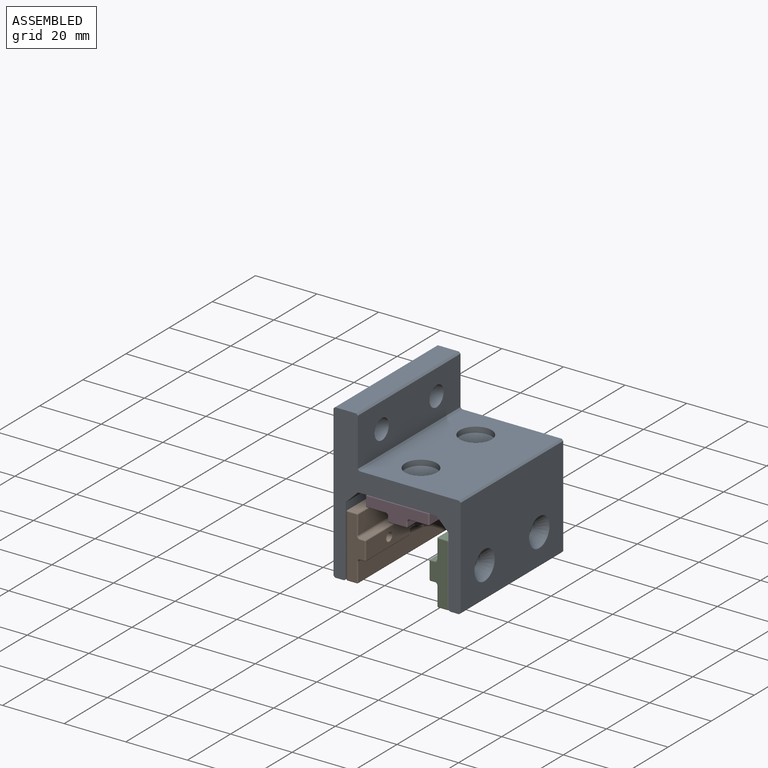
[diagram: assembled view]
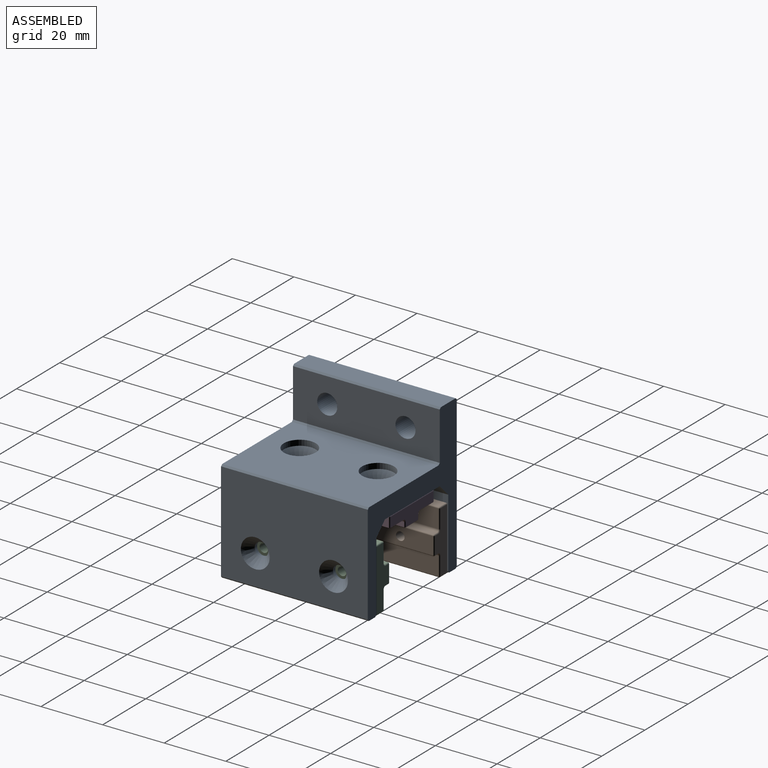
[diagram: assembled view, second angle]
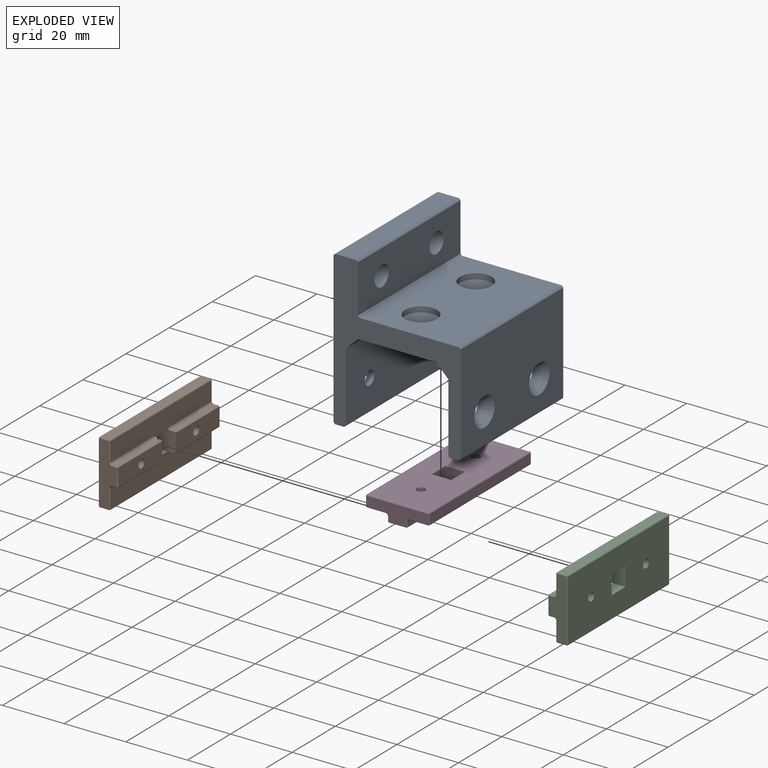
[diagram: exploded view]
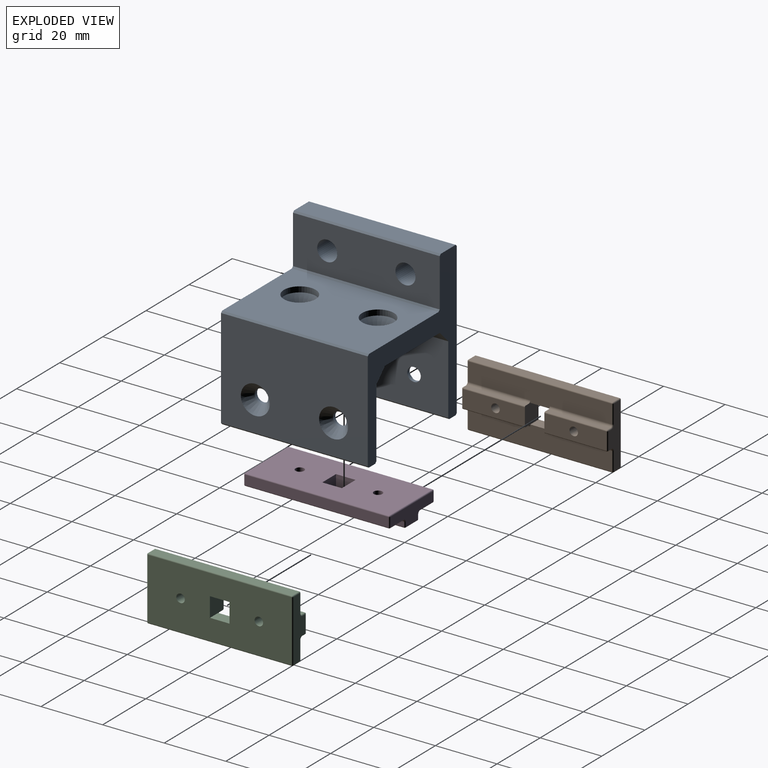
[diagram: exploded view, second angle]
ASSEMBLY  parts=4 mates=3
PART A: 38 faces, bbox 41.2x47.6x50 mm
  f0: plane 48.97x47.63mm, normal (-1,0,0), area 2126.6mm2, adj f3,f5,f12,f13,f15,f17,f29,f30
  f1: plane 47.63x2.95mm, normal (0,0,-1), area 140.3mm2, adj f3,f5,f34,f35
  f2: plane 47.63x2.95mm, normal (0,0,-1), area 140.3mm2, adj f3,f5,f28,f29
  f3: plane 49.99x41.25mm, normal (0,-1,0), area 622.3mm2, adj f0,f1,f2,f4,f6,f7,f8,f9
  f4: plane 47.63x6.88mm, normal (0,0,1), area 327.8mm2, adj f3,f5,f30,f31
  f5: plane 49.99x41.25mm, normal (0,1,0), area 622.3mm2, adj f0,f1,f2,f4,f6,f7,f8,f9
  f6: plane 47.63x32.31mm, normal (1,0,0), area 1400mm2, adj f3,f5,f19,f21,f33,f34
  f7: plane 47.63x22.5mm, normal (-1,0,0), area 1041.4mm2, adj f3,f5,f18,f20,f35,f36
  f8: plane 47.63x25.4mm, normal (0,0,-1), area 1179.3mm2, adj f3,f5,f22,f25,f36,f37
  f9: plane 47.63x22.5mm, normal (1,0,0), area 1041.4mm2, adj f3,f5,f14,f16,f28,f37
  f10: plane 47.63x32.33mm, normal (0,0,1), area 1372mm2, adj f3,f5,f24,f27,f32,f33
  f11: plane 47.63x15.65mm, normal (1,0,0), area 678.2mm2, adj f3,f5,f12,f13,f31,f32
  f12: cylinder r=3.26mm len=7.9mm, axis (-1,0,0), area 162mm2, adj f0,f11
  f13: cylinder r=3.26mm len=7.9mm, axis (-1,0,0), area 162mm2, adj f0,f11
  f14: cylinder r=2.2mm len=4.39mm, axis (-1,0,0), area 15mm2, adj f9,f15
  f15: cone r=4.7mm half-angle=41deg, axis (-1,0,0), area 82.6mm2, adj f0,f14
  f16: cylinder r=2.2mm len=4.39mm, axis (-1,0,0), area 15mm2, adj f9,f17
  f17: cone r=4.7mm half-angle=41deg, axis (-1,0,0), area 82.6mm2, adj f0,f16
  f18: cylinder r=2.2mm len=4.39mm, axis (1,0,0), area 15mm2, adj f7,f19
  f19: cone r=4.7mm half-angle=41deg, axis (1,0,0), area 82.6mm2, adj f6,f18
  f20: cylinder r=2.2mm len=4.39mm, axis (1,0,0), area 15mm2, adj f7,f21
  f21: cone r=4.7mm half-angle=41deg, axis (1,0,0), area 82.6mm2, adj f6,f20
  f22: cylinder r=2.2mm len=4.39mm, axis (0,0,1), area 15.9mm2, adj f8,f23
  f23: cone r=5.17mm half-angle=41deg, axis (0,0,1), area 104.8mm2, adj f22,f24
  f24: cylinder r=5.17mm len=10.34mm, axis (0,0,1), area 57.7mm2, adj f10,f23
  f25: cylinder r=2.2mm len=4.39mm, axis (0,0,1), area 15.9mm2, adj f8,f26
  f26: cone r=5.17mm half-angle=41deg, axis (0,0,1), area 104.8mm2, adj f25,f27
  f27: cylinder r=5.17mm len=10.34mm, axis (0,0,1), area 57.7mm2, adj f10,f26
  f28: plane 47.63x0.51mm, normal (0.71,0,-0.71), area 34.2mm2, adj f2,f3,f5,f9
  f29: plane 47.63x0.51mm, normal (-0.71,0,-0.71), area 34.2mm2, adj f0,f2,f3,f5
  f30: plane 47.63x0.51mm, normal (-0.71,0,0.71), area 34.2mm2, adj f0,f3,f4,f5
  f31: plane 47.63x0.51mm, normal (0.71,0,0.71), area 34.2mm2, adj f3,f4,f5,f11
  f32: plane 47.63x0.51mm, normal (0.71,0,0.71), area 34.2mm2, adj f3,f5,f10,f11
  f33: plane 47.63x0.51mm, normal (0.71,0,0.71), area 34.2mm2, adj f3,f5,f6,f10
  f34: plane 47.63x0.51mm, normal (0.71,0,-0.71), area 34.2mm2, adj f1,f3,f5,f6
  f35: plane 47.63x0.51mm, normal (-0.71,0,-0.71), area 34.2mm2, adj f1,f3,f5,f7
  f36: plane 47.63x3.96mm, normal (-0.71,0,-0.71), area 266.9mm2, adj f3,f5,f7,f8
  f37: plane 47.63x3.96mm, normal (0.71,0,-0.71), area 266.9mm2, adj f3,f5,f8,f9
PART B: 63 faces, bbox 20.6x47.4x6.4 mm
  f0: cylinder r=0.76mm len=20.13mm, axis (0,1,0), area 24.1mm2, adj f4,f22,f40,f60
  f1: cylinder r=0.76mm len=20.13mm, axis (0,1,0), area 24.1mm2, adj f9,f22,f57,f61
  f2: cylinder r=0.76mm len=20.13mm, axis (0,1,0), area 24.1mm2, adj f8,f14,f33,f60
  f3: cylinder r=0.76mm len=20.13mm, axis (0,1,0), area 24.1mm2, adj f13,f14,f45,f61
  f4: plane 20.13x1.4mm, normal (1,0,0), area 28.1mm2, adj f0,f5,f42,f60
  f5: cylinder r=0.38mm len=20.13mm, axis (0,1,0), area 12mm2, adj f4,f6,f41,f60
  f6: plane 20.13x5.59mm, normal (0,0,1), area 106.5mm2, adj f5,f7,f25,f39,f60
  f7: cylinder r=0.38mm len=20.13mm, axis (0,1,0), area 12mm2, adj f6,f8,f37,f60
  f8: plane 20.13x1.4mm, normal (-1,0,0), area 28.1mm2, adj f2,f7,f35,f60
  f9: plane 20.13x1.4mm, normal (1,0,0), area 28.1mm2, adj f1,f10,f55,f61
  f10: cylinder r=0.38mm len=20.13mm, axis (0,1,0), area 12mm2, adj f9,f11,f53,f61
  f11: plane 20.13x5.59mm, normal (0,0,1), area 106.5mm2, adj f10,f12,f26,f51,f61
  f12: cylinder r=0.38mm len=20.13mm, axis (0,1,0), area 12mm2, adj f11,f13,f49,f61
  f13: plane 20.13x1.4mm, normal (-1,0,0), area 28.1mm2, adj f3,f12,f47,f61
  f14: plane 46.61x6.76mm, normal (0,0,1), area 284.2mm2, adj f2,f3,f15,f31,f43,f60,f61,f62
  f15: cylinder r=0.38mm len=46.61mm, axis (0,1,0), area 27.9mm2, adj f14,f16,f29,f44
  f16: plane 46.61x3.05mm, normal (-1,0,0), area 142.1mm2, adj f15,f17,f27,f46
  f17: cylinder r=0.38mm len=46.61mm, axis (0,1,0), area 27.9mm2, adj f16,f18,f28,f48
  f18: plane 46.61x19.86mm, normal (0,0,-1), area 873.4mm2, adj f17,f19,f25,f26,f30,f50,f59,f60
  f19: cylinder r=0.38mm len=46.61mm, axis (0,1,0), area 27.9mm2, adj f18,f20,f32,f52
  f20: plane 46.61x3.05mm, normal (1,0,0), area 142.1mm2, adj f19,f21,f34,f54
  f21: cylinder r=0.38mm len=46.61mm, axis (0,1,0), area 27.9mm2, adj f20,f22,f36,f56
  f22: plane 46.61x6.76mm, normal (0,0,1), area 284.2mm2, adj f0,f1,f21,f38,f58,f59,f60,f61
  f23: plane 19.86x5.59mm, normal (0,-1,0), area 75.3mm2, adj f43,f45,f46,f47,f50,f51,f54,f55
  f24: plane 19.86x5.59mm, normal (0,1,0), area 75.3mm2, adj f27,f30,f31,f33,f34,f35,f38,f39
  f25: cylinder r=1.38mm len=6.35mm, axis (0,0,-1), area 55.2mm2, adj f6,f18
  f26: cylinder r=1.38mm len=6.35mm, axis (0,0,-1), area 55.2mm2, adj f11,f18
  f27: cylinder r=0.38mm len=3.05mm, axis (0,0,1), area 1.8mm2, adj f16,f24,f28,f29
  f28: sphere r=0.38mm, area 0.2mm2, adj f17,f27,f30
  f29: sphere r=0.38mm, area 0.2mm2, adj f15,f27,f31
  f30: cylinder r=0.38mm len=19.86mm, axis (-1,0,0), area 11.9mm2, adj f18,f24,f28,f32
  f31: cylinder r=0.38mm len=5.99mm, axis (1,0,0), area 3.6mm2, adj f14,f24,f29,f33
  f32: sphere r=0.38mm, area 0.2mm2, adj f19,f30,f34
  f33: torus R=1.14mm, axis (0,1,0), area 0.8mm2, adj f2,f24,f31,f35
  f34: cylinder r=0.38mm len=3.05mm, axis (0,0,-1), area 1.8mm2, adj f20,f24,f32,f36
  f35: cylinder r=0.38mm len=1.4mm, axis (0,0,1), area 0.8mm2, adj f8,f24,f33,f37
  f36: sphere r=0.38mm, area 0.2mm2, adj f21,f34,f38
  f37: sphere r=0.38mm, area 0.2mm2, adj f7,f35,f39
  f38: cylinder r=0.38mm len=5.99mm, axis (1,0,0), area 3.6mm2, adj f22,f24,f36,f40
  f39: cylinder r=0.38mm len=5.59mm, axis (1,0,0), area 3.3mm2, adj f6,f24,f37,f41
  f40: torus R=1.14mm, axis (0,1,0), area 0.8mm2, adj f0,f24,f38,f42
  f41: sphere r=0.38mm, area 0.2mm2, adj f5,f39,f42
  f42: cylinder r=0.38mm len=1.4mm, axis (0,0,-1), area 0.8mm2, adj f4,f24,f40,f41
  f43: cylinder r=0.38mm len=5.99mm, axis (-1,0,0), area 3.6mm2, adj f14,f23,f44,f45
  f44: sphere r=0.38mm, area 0.2mm2, adj f15,f43,f46
  f45: torus R=1.14mm, axis (0,1,0), area 0.8mm2, adj f3,f23,f43,f47
  f46: cylinder r=0.38mm len=3.05mm, axis (0,0,-1), area 1.8mm2, adj f16,f23,f44,f48
  f47: cylinder r=0.38mm len=1.4mm, axis (0,0,-1), area 0.8mm2, adj f13,f23,f45,f49
  f48: sphere r=0.38mm, area 0.2mm2, adj f17,f46,f50
  f49: sphere r=0.38mm, area 0.2mm2, adj f12,f47,f51
  f50: cylinder r=0.38mm len=19.86mm, axis (1,0,0), area 11.9mm2, adj f18,f23,f48,f52
  f51: cylinder r=0.38mm len=5.59mm, axis (-1,0,0), area 3.3mm2, adj f11,f23,f49,f53
  f52: sphere r=0.38mm, area 0.2mm2, adj f19,f50,f54
  f53: sphere r=0.38mm, area 0.2mm2, adj f10,f51,f55
  f54: cylinder r=0.38mm len=3.05mm, axis (0,0,1), area 1.8mm2, adj f20,f23,f52,f56
  f55: cylinder r=0.38mm len=1.4mm, axis (0,0,1), area 0.8mm2, adj f9,f23,f53,f57
  f56: sphere r=0.38mm, area 0.2mm2, adj f21,f54,f58
  f57: torus R=1.14mm, axis (0,1,0), area 0.8mm2, adj f1,f23,f55,f58
  f58: cylinder r=0.38mm len=5.99mm, axis (-1,0,0), area 3.6mm2, adj f22,f23,f56,f57
  f59: plane 6.35x3.81mm, normal (-1,0,0), area 24.2mm2, adj f18,f22,f60,f61
  f60: plane 7.87x6.35mm, normal (0,-1,0), area 40.5mm2, adj f0,f2,f4,f5,f6,f7,f8,f14
  f61: plane 7.87x6.35mm, normal (0,1,0), area 40.5mm2, adj f1,f3,f9,f10,f11,f12,f13,f14
  f62: plane 6.35x3.81mm, normal (1,0,0), area 24.2mm2, adj f14,f18,f60,f61
PART C: same geometry as B
PART D: same geometry as B
PLACE A t=(-32.07,-1.77,10.44)mm
PLACE B rot(axis=(0,1,0),90deg) t=(-48.74,-1.77,10.44)mm
PLACE C rot(axis=(0,-1,0),90deg) t=(-15.41,-1.77,10.44)mm
PLACE D rot(axis=(0,1,0),180deg) t=(-32.07,-1.77,27.1)mm
MATE fastened C.f26 <-> A.f20  axis (1,0,0) through (-15.41,-14.47,10.44)mm
MATE fastened B.f26 <-> A.f14  axis (-1,0,0) through (-48.74,-14.47,10.44)mm
MATE fastened D.f26 <-> A.f25  axis (0,0,1) through (-32.07,-14.47,27.1)mm
